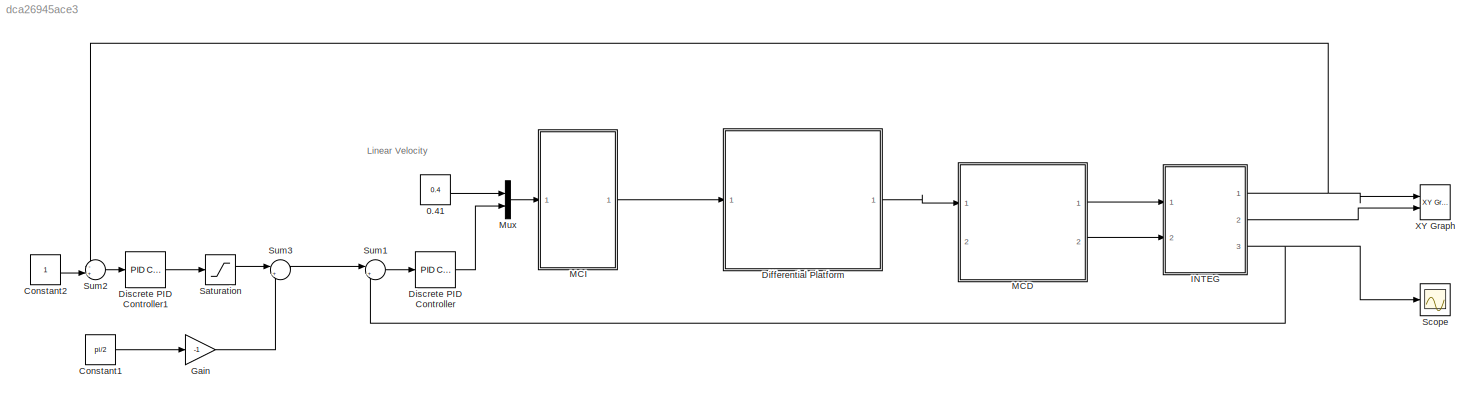
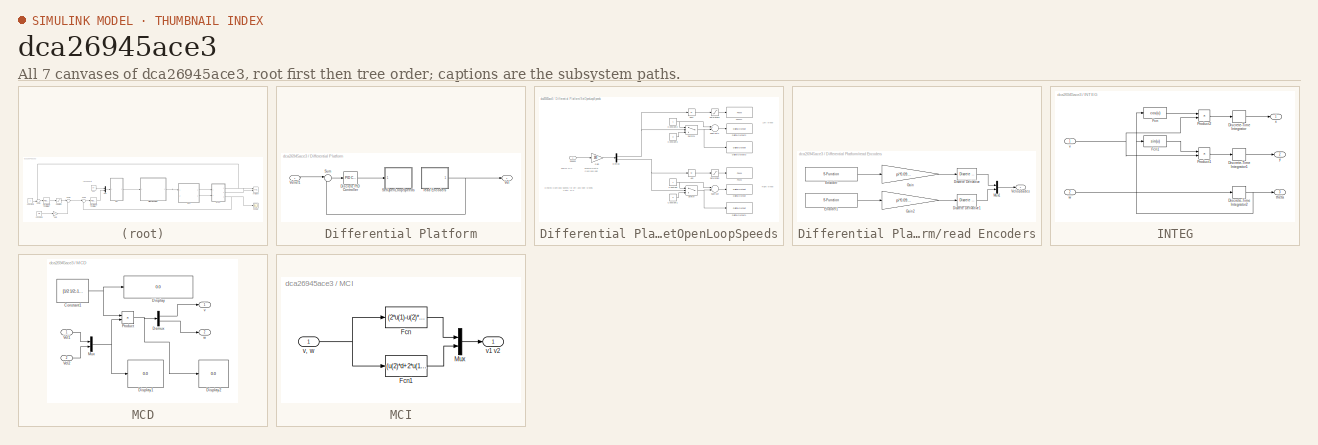
[diagram: thumbnail index - all 7 canvases of the model, root first then tree order]
MODEL slx_dca26945ace3
KIND model
BLOCK [Constant] 0.41
  Value = 0.4
BLOCK [Constant] Constant1
  Value = pi/2
BLOCK [Constant] Constant2
BLOCK [SubSystem] Differential Platform
  FunctionWithSeparateData = off
  MaskHideContents = off
  MinAlgLoopOccurrences = off
  Opaque = off
  Ports = [1, 1]
  PropExecContextOutsideSubsystem = off
  RTWSystemCode = Auto
  RequestExecContextInheritance = off
BLOCK [Reference] Differential Platform/Discrete PID Controller  REF=simulink/Continuous/PID Controller
  AntiWindupMode = none
  Controller = PID
  D = 0
  DOutDataTypeStr = Inherit: Inherit via internal rule
  DOutMax = []
  DOutMin = []
  DParamDataTypeStr = Inherit: Inherit via internal rule
  DParamMax = []
  DParamMin = []
  ExternalReset = none
  FilterContinuousStateAttributes = ''
  FilterMethod = Forward Euler
  FilterOutDataTypeStr = Inherit: Inherit via internal rule
  FilterOutMax = []
  FilterOutMin = []
  FilterRTWStateStorageClass = Auto
  FilterStateMustResolveToSignalObject = off
  Form = Parallel
  I = 2
  IOutDataTypeStr = Inherit: Inherit via internal rule
  IOutMax = []
  IOutMin = []
  IParamDataTypeStr = Inherit: Inherit via internal rule
  IParamMax = []
  IParamMin = []
  IgnoreLimit = off
  InitialConditionForFilter = 0
  InitialConditionForIntegrator = 0
  InitialConditionSource = internal
  IntegratorContinuousStateAttributes = ''
  IntegratorMethod = Forward Euler
  IntegratorOutDataTypeStr = Inherit: Inherit via internal rule
  IntegratorOutMax = []
  IntegratorOutMin = []
  IntegratorRTWStateStorageClass = Auto
  IntegratorStateMustResolveToSignalObject = off
  Kb = 1
  KbOutDataTypeStr = Inherit: Inherit via internal rule
  KbOutMax = []
  KbOutMin = []
  KbParamDataTypeStr = Inherit: Inherit via internal rule
  KbParamMax = []
  KbParamMin = []
  Kt = 1
  KtOutDataTypeStr = Inherit: Inherit via internal rule
  KtOutMax = []
  KtOutMin = []
  KtParamDataTypeStr = Inherit: Inherit via internal rule
  KtParamMax = []
  KtParamMin = []
  LimitOutput = off
  LinearizeAsGain = off
  LockScale = off
  LowerSaturationLimit = -inf
  N = 100
  NOutDataTypeStr = Inherit: Inherit via internal rule
  NOutMax = []
  NOutMin = []
  NParamDataTypeStr = Inherit: Inherit via internal rule
  NParamMax = []
  NParamMin = []
  P = 1
  POutDataTypeStr = Inherit: Inherit via internal rule
  POutMax = []
  POutMin = []
  PParamDataTypeStr = Inherit: Inherit via internal rule
  PParamMax = []
  PParamMin = []
  Ports = [1, 1]
  RndMeth = Floor
  SampleTime = -1
  SaturateOnIntegerOverflow = off
  SaturationOutDataTypeStr = Inherit: Same as input
  SaturationOutMax = []
  SaturationOutMin = []
  SourceBlock = simulink/Continuous/PID Controller
  SourceType = PID 1dof
  SumAccumDataTypeStr = Inherit: Inherit via internal rule
  SumDAccumDataTypeStr = Inherit: Inherit via internal rule
  SumDOutDataTypeStr = Inherit: Inherit via internal rule
  SumDOutMax = []
  SumDOutMin = []
  SumI1AccumDataTypeStr = Inherit: Inherit via internal rule
  SumI1OutDataTypeStr = Inherit: Inherit via internal rule
  SumI1OutMax = []
  SumI1OutMin = []
  SumI2AccumDataTypeStr = Inherit: Inherit via internal rule
  SumI2OutDataTypeStr = Inherit: Inherit via internal rule
  SumI2OutMax = []
  SumI2OutMin = []
  SumI3AccumDataTypeStr = Inherit: Inherit via internal rule
  SumI3OutDataTypeStr = Inherit: Inherit via internal rule
  SumI3OutMax = []
  SumI3OutMin = []
  SumOutDataTypeStr = Inherit: Inherit via internal rule
  SumOutMax = []
  SumOutMin = []
  TimeDomain = Discrete-time
  TrackingMode = off
  UpperSaturationLimit = inf
  ZeroCross = on
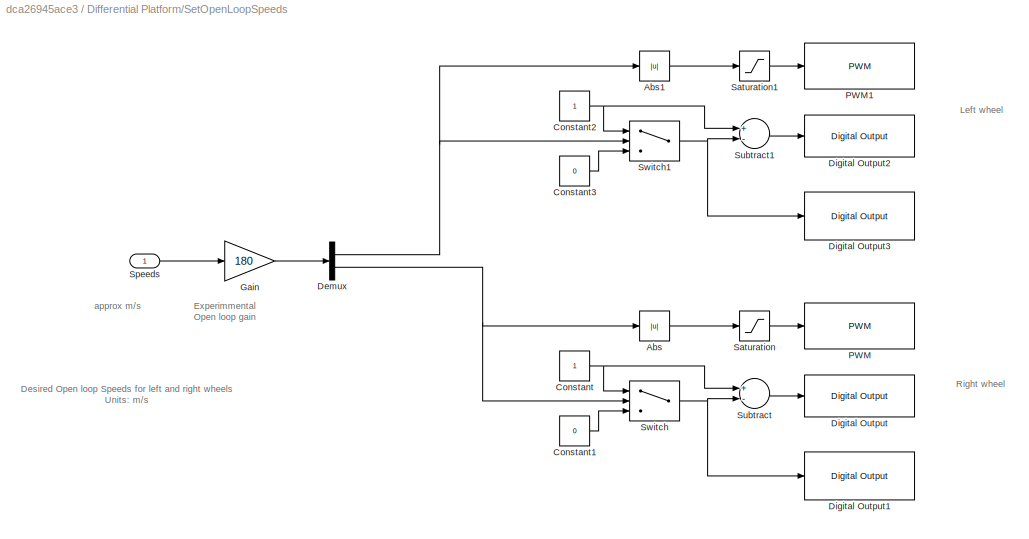
BLOCK [SubSystem] Differential Platform/SetOpenLoopSpeeds
  FunctionWithSeparateData = off
  MaskHideContents = off
  MinAlgLoopOccurrences = off
  Opaque = off
  Ports = [1]
  PropExecContextOutsideSubsystem = off
  RTWSystemCode = Auto
  RequestExecContextInheritance = off
BLOCK [Abs] Differential Platform/SetOpenLoopSpeeds/Abs
  SaturateOnIntegerOverflow = off
BLOCK [Abs] Differential Platform/SetOpenLoopSpeeds/Abs1
  SaturateOnIntegerOverflow = off
BLOCK [Constant] Differential Platform/SetOpenLoopSpeeds/Constant
BLOCK [Constant] Differential Platform/SetOpenLoopSpeeds/Constant1
  Value = 0
BLOCK [Constant] Differential Platform/SetOpenLoopSpeeds/Constant2
BLOCK [Constant] Differential Platform/SetOpenLoopSpeeds/Constant3
  Value = 0
BLOCK [Demux] Differential Platform/SetOpenLoopSpeeds/Demux
  DisplayOption = bar
  Outputs = 2
  Ports = [1, 2]
BLOCK [Reference] Differential Platform/SetOpenLoopSpeeds/Digital Output  REF=arduinolib/Digital Output
  Ports = [1]
  SourceBlock = arduinolib/Digital Output
  SourceType = Arduino Digital Output
  pinNumber = 11
BLOCK [Reference] Differential Platform/SetOpenLoopSpeeds/Digital Output1  REF=arduinolib/Digital Output
  Ports = [1]
  SourceBlock = arduinolib/Digital Output
  SourceType = Arduino Digital Output
  pinNumber = 12
BLOCK [Reference] Differential Platform/SetOpenLoopSpeeds/Digital Output2  REF=arduinolib/Digital Output
  Ports = [1]
  SourceBlock = arduinolib/Digital Output
  SourceType = Arduino Digital Output
  pinNumber = 9
BLOCK [Reference] Differential Platform/SetOpenLoopSpeeds/Digital Output3  REF=arduinolib/Digital Output
  Ports = [1]
  SourceBlock = arduinolib/Digital Output
  SourceType = Arduino Digital Output
  pinNumber = 10
BLOCK [Gain] Differential Platform/SetOpenLoopSpeeds/Gain
  Gain = 180
  OutDataTypeStr = Inherit: Inherit via internal rule
  ParamDataTypeStr = Inherit: Inherit via internal rule
  SaturateOnIntegerOverflow = off
BLOCK [Reference] Differential Platform/SetOpenLoopSpeeds/PWM  REF=arduinolib/PWM
  Ports = [1]
  SourceBlock = arduinolib/PWM
  SourceType = Arduino PWM
  pinNumber = 13
BLOCK [Reference] Differential Platform/SetOpenLoopSpeeds/PWM1  REF=arduinolib/PWM
  Ports = [1]
  SourceBlock = arduinolib/PWM
  SourceType = Arduino PWM
  pinNumber = 8
BLOCK [Saturate] Differential Platform/SetOpenLoopSpeeds/Saturation
  InputPortMap = u0
  LowerLimit = 0
  OutDataTypeStr = uint8
  Ports = [1, 1]
  UpperLimit = 255
BLOCK [Saturate] Differential Platform/SetOpenLoopSpeeds/Saturation1
  InputPortMap = u0
  LowerLimit = 0
  OutDataTypeStr = uint8
  Ports = [1, 1]
  UpperLimit = 255
BLOCK [Inport] Differential Platform/SetOpenLoopSpeeds/Speeds
  IconDisplay = Port number
BLOCK [Sum] Differential Platform/SetOpenLoopSpeeds/Subtract
  InputSameDT = off
  Inputs = +-
  OutDataTypeStr = Inherit: Inherit via internal rule
  Ports = [2, 1]
  SaturateOnIntegerOverflow = off
BLOCK [Sum] Differential Platform/SetOpenLoopSpeeds/Subtract1
  InputSameDT = off
  Inputs = +-
  OutDataTypeStr = Inherit: Inherit via internal rule
  Ports = [2, 1]
  SaturateOnIntegerOverflow = off
BLOCK [Switch] Differential Platform/SetOpenLoopSpeeds/Switch
  Criteria = u2 > Threshold
  InputSameDT = off
  SaturateOnIntegerOverflow = off
BLOCK [Switch] Differential Platform/SetOpenLoopSpeeds/Switch1
  Criteria = u2 > Threshold
  InputSameDT = off
  SaturateOnIntegerOverflow = off
BLOCK [Sum] Differential Platform/Sum
  IconShape = round
  InputSameDT = off
  Inputs = |+-
  OutDataTypeStr = Inherit: Inherit via internal rule
  Ports = [2, 1]
  SaturateOnIntegerOverflow = off
BLOCK [Outport] Differential Platform/Vel
  IconDisplay = Port number
BLOCK [Inport] Differential Platform/Velref1
  IconDisplay = Port number
BLOCK [SubSystem] Differential Platform/read Encoders
  FunctionWithSeparateData = off
  MaskHideContents = off
  MinAlgLoopOccurrences = off
  Opaque = off
  Ports = [0, 1]
  PropExecContextOutsideSubsystem = off
  RTWSystemCode = Auto
  RequestExecContextInheritance = off
BLOCK [Reference] Differential Platform/read Encoders/Discrete Derivative  REF=simulink/Discrete/Discrete Derivative
  DoSatur = off
  ICPrevScaledInput = 0.0
  InputProcessing = Inherited
  LockScale = off
  OutDataType = fixdt(1, 16)
  OutDataTypeStr = Inherit: Inherit via internal rule
  OutMax = []
  OutMin = []
  OutScaling = 2^-10
  OutputDataTypeScalingMode = Inherit via internal rule
  Ports = [1, 1]
  RndMeth = Floor
  SourceBlock = simulink/Discrete/Discrete Derivative
  SourceType = Discrete Derivative
  gainval = 1.0
BLOCK [Reference] Differential Platform/read Encoders/Discrete Derivative1  REF=simulink/Discrete/Discrete Derivative
  DoSatur = off
  ICPrevScaledInput = 0.0
  InputProcessing = Inherited
  LockScale = off
  OutDataType = fixdt(1, 16)
  OutDataTypeStr = Inherit: Inherit via internal rule
  OutMax = []
  OutMin = []
  OutScaling = 2^-10
  OutputDataTypeScalingMode = Inherit via internal rule
  Ports = [1, 1]
  RndMeth = Floor
  SourceBlock = simulink/Discrete/Discrete Derivative
  SourceType = Discrete Derivative
  gainval = 1.0
BLOCK [S-Function] Differential Platform/read Encoders/Encoder
  CopyFcn = set_param(gcbh,'LinkStatus','none')
  EnableBusSupport = off
  FunctionName = sfcn_encoder
  InitFcn = try, set_param(gcb,'FunctionName','sfcn_encoder'), end
  OpenFcn = sfunctionwizard(gcbh)
  Parameters = uint8(0),uint8(3),uint8(2)
  Ports = [0, 1]
  PreSaveFcn = try, set_param(gcb,'FunctionName','sfcn_encoder'), end
  SFunctionModules = sfcn_encoder_wrapper
BLOCK [S-Function] Differential Platform/read Encoders/Encoder1
  CopyFcn = set_param(gcbh,'LinkStatus','none')
  EnableBusSupport = off
  FunctionName = sfcn_encoder
  InitFcn = try, set_param(gcb,'FunctionName','sfcn_encoder'), end
  OpenFcn = sfunctionwizard(gcbh)
  Parameters = uint8(1),uint8(19),uint8(18)
  Ports = [0, 1]
  PreSaveFcn = try, set_param(gcb,'FunctionName','sfcn_encoder'), end
  SFunctionModules = sfcn_encoder_wrapper
BLOCK [Gain] Differential Platform/read Encoders/Gain
  Gain = pi*0.098/360
  OutDataTypeStr = double
  ParamDataTypeStr = Inherit: Inherit via internal rule
  SaturateOnIntegerOverflow = off
BLOCK [Gain] Differential Platform/read Encoders/Gain2
  Gain = pi*0.098/360
  OutDataTypeStr = double
  ParamDataTypeStr = Inherit: Inherit via internal rule
  SaturateOnIntegerOverflow = off
BLOCK [Mux] Differential Platform/read Encoders/Mux1
  DisplayOption = bar
  Inputs = 2
  Ports = [2, 1]
BLOCK [Outport] Differential Platform/read Encoders/Velocidades
  IconDisplay = Port number
BLOCK [Reference] Discrete PID Controller  REF=simulink/Continuous/PID Controller
  AntiWindupMode = none
  Controller = PID
  D = 0
  DOutDataTypeStr = Inherit: Inherit via internal rule
  DOutMax = []
  DOutMin = []
  DParamDataTypeStr = Inherit: Inherit via internal rule
  DParamMax = []
  DParamMin = []
  ExternalReset = none
  FilterContinuousStateAttributes = ''
  FilterMethod = Forward Euler
  FilterOutDataTypeStr = Inherit: Inherit via internal rule
  FilterOutMax = []
  FilterOutMin = []
  FilterRTWStateStorageClass = Auto
  FilterStateMustResolveToSignalObject = off
  Form = Parallel
  I = 0
  IOutDataTypeStr = Inherit: Inherit via internal rule
  IOutMax = []
  IOutMin = []
  IParamDataTypeStr = Inherit: Inherit via internal rule
  IParamMax = []
  IParamMin = []
  IgnoreLimit = off
  InitialConditionForFilter = 0
  InitialConditionForIntegrator = 0
  InitialConditionSource = internal
  IntegratorContinuousStateAttributes = ''
  IntegratorMethod = Forward Euler
  IntegratorOutDataTypeStr = Inherit: Inherit via internal rule
  IntegratorOutMax = []
  IntegratorOutMin = []
  IntegratorRTWStateStorageClass = Auto
  IntegratorStateMustResolveToSignalObject = off
  Kb = 1
  KbOutDataTypeStr = Inherit: Inherit via internal rule
  KbOutMax = []
  KbOutMin = []
  KbParamDataTypeStr = Inherit: Inherit via internal rule
  KbParamMax = []
  KbParamMin = []
  Kt = 1
  KtOutDataTypeStr = Inherit: Inherit via internal rule
  KtOutMax = []
  KtOutMin = []
  KtParamDataTypeStr = Inherit: Inherit via internal rule
  KtParamMax = []
  KtParamMin = []
  LimitOutput = off
  LinearizeAsGain = off
  LockScale = off
  LowerSaturationLimit = -2*pi
  N = 100
  NOutDataTypeStr = Inherit: Inherit via internal rule
  NOutMax = []
  NOutMin = []
  NParamDataTypeStr = Inherit: Inherit via internal rule
  NParamMax = []
  NParamMin = []
  P = 2
  POutDataTypeStr = Inherit: Inherit via internal rule
  POutMax = []
  POutMin = []
  PParamDataTypeStr = Inherit: Inherit via internal rule
  PParamMax = []
  PParamMin = []
  Ports = [1, 1]
  RndMeth = Floor
  SampleTime = -1
  SaturateOnIntegerOverflow = off
  SaturationOutDataTypeStr = Inherit: Same as input
  SaturationOutMax = []
  SaturationOutMin = []
  SourceBlock = simulink/Continuous/PID Controller
  SourceType = PID 1dof
  SumAccumDataTypeStr = Inherit: Inherit via internal rule
  SumDAccumDataTypeStr = Inherit: Inherit via internal rule
  SumDOutDataTypeStr = Inherit: Inherit via internal rule
  SumDOutMax = []
  SumDOutMin = []
  SumI1AccumDataTypeStr = Inherit: Inherit via internal rule
  SumI1OutDataTypeStr = Inherit: Inherit via internal rule
  SumI1OutMax = []
  SumI1OutMin = []
  SumI2AccumDataTypeStr = Inherit: Inherit via internal rule
  SumI2OutDataTypeStr = Inherit: Inherit via internal rule
  SumI2OutMax = []
  SumI2OutMin = []
  SumI3AccumDataTypeStr = Inherit: Inherit via internal rule
  SumI3OutDataTypeStr = Inherit: Inherit via internal rule
  SumI3OutMax = []
  SumI3OutMin = []
  SumOutDataTypeStr = Inherit: Inherit via internal rule
  SumOutMax = []
  SumOutMin = []
  TimeDomain = Discrete-time
  TrackingMode = off
  UpperSaturationLimit = 2*pi
  ZeroCross = on
BLOCK [Reference] Discrete PID Controller1  REF=simulink/Continuous/PID Controller
  AntiWindupMode = none
  Controller = PID
  D = 0
  DOutDataTypeStr = Inherit: Inherit via internal rule
  DOutMax = []
  DOutMin = []
  DParamDataTypeStr = Inherit: Inherit via internal rule
  DParamMax = []
  DParamMin = []
  ExternalReset = none
  FilterContinuousStateAttributes = ''
  FilterMethod = Forward Euler
  FilterOutDataTypeStr = Inherit: Inherit via internal rule
  FilterOutMax = []
  FilterOutMin = []
  FilterRTWStateStorageClass = Auto
  FilterStateMustResolveToSignalObject = off
  Form = Parallel
  I = 0
  IOutDataTypeStr = Inherit: Inherit via internal rule
  IOutMax = []
  IOutMin = []
  IParamDataTypeStr = Inherit: Inherit via internal rule
  IParamMax = []
  IParamMin = []
  IgnoreLimit = off
  InitialConditionForFilter = 0
  InitialConditionForIntegrator = 0
  InitialConditionSource = internal
  IntegratorContinuousStateAttributes = ''
  IntegratorMethod = Forward Euler
  IntegratorOutDataTypeStr = Inherit: Inherit via internal rule
  IntegratorOutMax = []
  IntegratorOutMin = []
  IntegratorRTWStateStorageClass = Auto
  IntegratorStateMustResolveToSignalObject = off
  Kb = 1
  KbOutDataTypeStr = Inherit: Inherit via internal rule
  KbOutMax = []
  KbOutMin = []
  KbParamDataTypeStr = Inherit: Inherit via internal rule
  KbParamMax = []
  KbParamMin = []
  Kt = 1
  KtOutDataTypeStr = Inherit: Inherit via internal rule
  KtOutMax = []
  KtOutMin = []
  KtParamDataTypeStr = Inherit: Inherit via internal rule
  KtParamMax = []
  KtParamMin = []
  LimitOutput = off
  LinearizeAsGain = off
  LockScale = off
  LowerSaturationLimit = -2*pi
  N = 100
  NOutDataTypeStr = Inherit: Inherit via internal rule
  NOutMax = []
  NOutMin = []
  NParamDataTypeStr = Inherit: Inherit via internal rule
  NParamMax = []
  NParamMin = []
  P = 2
  POutDataTypeStr = Inherit: Inherit via internal rule
  POutMax = []
  POutMin = []
  PParamDataTypeStr = Inherit: Inherit via internal rule
  PParamMax = []
  PParamMin = []
  Ports = [1, 1]
  RndMeth = Floor
  SampleTime = -1
  SaturateOnIntegerOverflow = off
  SaturationOutDataTypeStr = Inherit: Same as input
  SaturationOutMax = []
  SaturationOutMin = []
  SourceBlock = simulink/Continuous/PID Controller
  SourceType = PID 1dof
  SumAccumDataTypeStr = Inherit: Inherit via internal rule
  SumDAccumDataTypeStr = Inherit: Inherit via internal rule
  SumDOutDataTypeStr = Inherit: Inherit via internal rule
  SumDOutMax = []
  SumDOutMin = []
  SumI1AccumDataTypeStr = Inherit: Inherit via internal rule
  SumI1OutDataTypeStr = Inherit: Inherit via internal rule
  SumI1OutMax = []
  SumI1OutMin = []
  SumI2AccumDataTypeStr = Inherit: Inherit via internal rule
  SumI2OutDataTypeStr = Inherit: Inherit via internal rule
  SumI2OutMax = []
  SumI2OutMin = []
  SumI3AccumDataTypeStr = Inherit: Inherit via internal rule
  SumI3OutDataTypeStr = Inherit: Inherit via internal rule
  SumI3OutMax = []
  SumI3OutMin = []
  SumOutDataTypeStr = Inherit: Inherit via internal rule
  SumOutMax = []
  SumOutMin = []
  TimeDomain = Discrete-time
  TrackingMode = off
  UpperSaturationLimit = 2*pi
  ZeroCross = on
BLOCK [Gain] Gain
  Gain = -1
  OutDataTypeStr = Inherit: Inherit via internal rule
  ParamDataTypeStr = Inherit: Inherit via internal rule
  SaturateOnIntegerOverflow = off
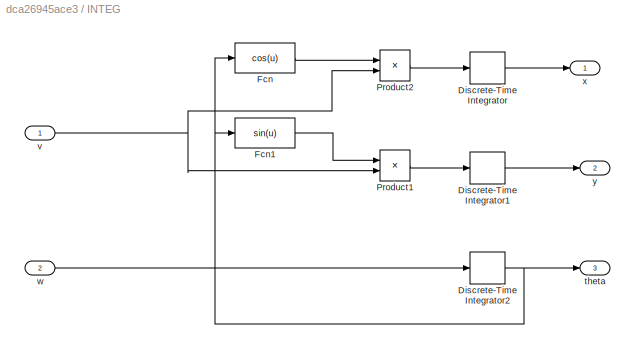
BLOCK [SubSystem] INTEG
  FunctionWithSeparateData = off
  MaskHideContents = off
  MinAlgLoopOccurrences = off
  Opaque = off
  Ports = [2, 3]
  PropExecContextOutsideSubsystem = off
  RTWSystemCode = Auto
  RequestExecContextInheritance = off
BLOCK [DiscreteIntegrator] INTEG/Discrete-Time Integrator
  ICPrevOutput = DiscIntNeverNeededParam
  ICPrevScaledInput = DiscIntNeverNeededParam
  Ports = [1, 1]
  SampleTime = -1
BLOCK [DiscreteIntegrator] INTEG/Discrete-Time Integrator1
  ICPrevOutput = DiscIntNeverNeededParam
  ICPrevScaledInput = DiscIntNeverNeededParam
  Ports = [1, 1]
  SampleTime = -1
BLOCK [DiscreteIntegrator] INTEG/Discrete-Time Integrator2
  ICPrevOutput = DiscIntNeverNeededParam
  ICPrevScaledInput = DiscIntNeverNeededParam
  Ports = [1, 1]
  SampleTime = -1
BLOCK [Fcn] INTEG/Fcn
  Expr = cos(u)
BLOCK [Fcn] INTEG/Fcn1
  Expr = sin(u)
BLOCK [Product] INTEG/Product1
  InputSameDT = off
  OutDataTypeStr = Inherit: Inherit via internal rule
  Ports = [2, 1]
  RndMeth = Floor
  SaturateOnIntegerOverflow = off
BLOCK [Product] INTEG/Product2
  InputSameDT = off
  OutDataTypeStr = Inherit: Inherit via internal rule
  Ports = [2, 1]
  RndMeth = Floor
  SaturateOnIntegerOverflow = off
BLOCK [Outport] INTEG/theta
  IconDisplay = Port number
  Port = 3
BLOCK [Inport] INTEG/v
  IconDisplay = Port number
BLOCK [Inport] INTEG/w
  IconDisplay = Port number
  Port = 2
BLOCK [Outport] INTEG/x
  IconDisplay = Port number
BLOCK [Outport] INTEG/y
  IconDisplay = Port number
  Port = 2
BLOCK [SubSystem] MCD
  FunctionWithSeparateData = off
  MaskHideContents = off
  MinAlgLoopOccurrences = off
  Opaque = off
  Ports = [2, 2]
  PropExecContextOutsideSubsystem = off
  RTWSystemCode = Auto
  RequestExecContextInheritance = off
BLOCK [Constant] MCD/Constant1
  Value = [1/2 1/2;-1/d 1/d]
  VectorParams1D = off
BLOCK [Demux] MCD/Demux
  DisplayOption = bar
  Outputs = 2
  Ports = [1, 2]
BLOCK [Display] MCD/Display
  Decimation = 1
  Ports = [1]
BLOCK [Display] MCD/Display1
  Decimation = 1
  Ports = [1]
BLOCK [Display] MCD/Display2
  Decimation = 1
  Ports = [1]
BLOCK [Mux] MCD/Mux
  DisplayOption = bar
  Inputs = 2
  Ports = [2, 1]
BLOCK [Product] MCD/Product
  InputSameDT = off
  Multiplication = Matrix(*)
  OutDataTypeStr = Inherit: Inherit via internal rule
  Ports = [2, 1]
  RndMeth = Floor
  SaturateOnIntegerOverflow = off
BLOCK [Inport] MCD/Vel1
  IconDisplay = Port number
BLOCK [Inport] MCD/Vel2
  IconDisplay = Port number
  Port = 2
BLOCK [Outport] MCD/v
  IconDisplay = Port number
BLOCK [Outport] MCD/w
  IconDisplay = Port number
  Port = 2
BLOCK [SubSystem] MCI
  FunctionWithSeparateData = off
  MaskHideContents = off
  MinAlgLoopOccurrences = off
  Opaque = off
  Ports = [1, 1]
  PropExecContextOutsideSubsystem = off
  RTWSystemCode = Auto
  RequestExecContextInheritance = off
BLOCK [Fcn] MCI/Fcn
  Expr = (2*u(1)-u(2)*d)/2
BLOCK [Fcn] MCI/Fcn1
  Expr = (u(2)*d+2*u(1))/2
BLOCK [Mux] MCI/Mux
  DisplayOption = bar
  Inputs = 2
  Ports = [2, 1]
BLOCK [Inport] MCI/v, w
  IconDisplay = Port number
BLOCK [Outport] MCI/v1 v2
  IconDisplay = Port number
BLOCK [Mux] Mux
  DisplayOption = bar
  Inputs = 2
  Ports = [2, 1]
BLOCK [Saturate] Saturation
  InputPortMap = u0
  LowerLimit = 0
  Ports = [1, 1]
  UpperLimit = pi
BLOCK [Scope] Scope
  DataFormat = StructureWithTime
  Floating = off
  NumInputPorts = 1
  Ports = [1]
  SampleTime = 0
  ShowLegends = off
  YMax = 36
  YMin = 34.7
  ZoomMode = yonly
BLOCK [Sum] Sum1
  IconShape = round
  InputSameDT = off
  Inputs = |+-
  OutDataTypeStr = Inherit: Inherit via internal rule
  Ports = [2, 1]
  SaturateOnIntegerOverflow = off
BLOCK [Sum] Sum2
  IconShape = round
  InputSameDT = off
  Inputs = -+|
  OutDataTypeStr = Inherit: Inherit via internal rule
  Ports = [2, 1]
  SaturateOnIntegerOverflow = off
BLOCK [Sum] Sum3
  IconShape = round
  InputSameDT = off
  Inputs = |++
  OutDataTypeStr = Inherit: Inherit via internal rule
  Ports = [2, 1]
  SaturateOnIntegerOverflow = off
BLOCK [Reference] XY Graph  REF=simulink/Sinks/XY Graph
  Ports = [2]
  SourceBlock = simulink/Sinks/XY Graph
  SourceType = XY scope.
  st = -1
  xmax = 100
  xmin = -100
  ymax = 100
  ymin = -100
ANNOTATION (root): Linear Velocity
ANNOTATION Differential Platform/SetOpenLoopSpeeds: Desired Open loop Speeds for left and right wheels Units: m/s
ANNOTATION Differential Platform/SetOpenLoopSpeeds: Experimmental Open loop gain
ANNOTATION Differential Platform/SetOpenLoopSpeeds: Left wheel
ANNOTATION Differential Platform/SetOpenLoopSpeeds: Right wheel
ANNOTATION Differential Platform/SetOpenLoopSpeeds: approx m/s
LINE 0.41:1 -> Mux:1
LINE Constant1:1 -> Gain:1
LINE Constant2:1 -> Sum2:2
LINE Differential Platform/Discrete PID Controller:1 -> Differential Platform/SetOpenLoopSpeeds:1
LINE Differential Platform/SetOpenLoopSpeeds/Abs1:1 -> Differential Platform/SetOpenLoopSpeeds/Saturation1:1
LINE Differential Platform/SetOpenLoopSpeeds/Abs:1 -> Differential Platform/SetOpenLoopSpeeds/Saturation:1
LINE Differential Platform/SetOpenLoopSpeeds/Constant1:1 -> Differential Platform/SetOpenLoopSpeeds/Switch:3
NET Differential Platform/SetOpenLoopSpeeds/Constant2:1 -> Differential Platform/SetOpenLoopSpeeds/Subtract1:1, Differential Platform/SetOpenLoopSpeeds/Switch1:1
LINE Differential Platform/SetOpenLoopSpeeds/Constant3:1 -> Differential Platform/SetOpenLoopSpeeds/Switch1:3
NET Differential Platform/SetOpenLoopSpeeds/Constant:1 -> Differential Platform/SetOpenLoopSpeeds/Subtract:1, Differential Platform/SetOpenLoopSpeeds/Switch:1
NET Differential Platform/SetOpenLoopSpeeds/Demux:1 -> Differential Platform/SetOpenLoopSpeeds/Abs1:1, Differential Platform/SetOpenLoopSpeeds/Switch1:2
NET Differential Platform/SetOpenLoopSpeeds/Demux:2 -> Differential Platform/SetOpenLoopSpeeds/Abs:1, Differential Platform/SetOpenLoopSpeeds/Switch:2
LINE Differential Platform/SetOpenLoopSpeeds/Gain:1 -> Differential Platform/SetOpenLoopSpeeds/Demux:1
LINE Differential Platform/SetOpenLoopSpeeds/Saturation1:1 -> Differential Platform/SetOpenLoopSpeeds/PWM1:1
LINE Differential Platform/SetOpenLoopSpeeds/Saturation:1 -> Differential Platform/SetOpenLoopSpeeds/PWM:1
LINE Differential Platform/SetOpenLoopSpeeds/Speeds:1 -> Differential Platform/SetOpenLoopSpeeds/Gain:1
LINE Differential Platform/SetOpenLoopSpeeds/Subtract1:1 -> Differential Platform/SetOpenLoopSpeeds/Digital Output2:1
LINE Differential Platform/SetOpenLoopSpeeds/Subtract:1 -> Differential Platform/SetOpenLoopSpeeds/Digital Output:1
NET Differential Platform/SetOpenLoopSpeeds/Switch1:1 -> Differential Platform/SetOpenLoopSpeeds/Digital Output3:1, Differential Platform/SetOpenLoopSpeeds/Subtract1:2
NET Differential Platform/SetOpenLoopSpeeds/Switch:1 -> Differential Platform/SetOpenLoopSpeeds/Digital Output1:1, Differential Platform/SetOpenLoopSpeeds/Subtract:2
LINE Differential Platform/Sum:1 -> Differential Platform/Discrete PID Controller:1
LINE Differential Platform/Velref1:1 -> Differential Platform/Sum:1
LINE Differential Platform/read Encoders/Discrete Derivative1:1 -> Differential Platform/read Encoders/Mux1:2
LINE Differential Platform/read Encoders/Discrete Derivative:1 -> Differential Platform/read Encoders/Mux1:1
LINE Differential Platform/read Encoders/Encoder1:1 -> Differential Platform/read Encoders/Gain2:1
LINE Differential Platform/read Encoders/Encoder:1 -> Differential Platform/read Encoders/Gain:1
LINE Differential Platform/read Encoders/Gain2:1 -> Differential Platform/read Encoders/Discrete Derivative1:1
LINE Differential Platform/read Encoders/Gain:1 -> Differential Platform/read Encoders/Discrete Derivative:1
LINE Differential Platform/read Encoders/Mux1:1 -> Differential Platform/read Encoders/Velocidades:1
NET Differential Platform/read Encoders:1 -> Differential Platform/Sum:2, Differential Platform/Vel:1
LINE Differential Platform:1 -> MCD:1
LINE Discrete PID Controller1:1 -> Saturation:1
LINE Discrete PID Controller:1 -> Mux:2
LINE Gain:1 -> Sum3:2
LINE INTEG/Discrete-Time Integrator1:1 -> INTEG/y:1
NET INTEG/Discrete-Time Integrator2:1 -> INTEG/Fcn1:1, INTEG/Fcn:1, INTEG/theta:1
LINE INTEG/Discrete-Time Integrator:1 -> INTEG/x:1
LINE INTEG/Fcn1:1 -> INTEG/Product1:1
LINE INTEG/Fcn:1 -> INTEG/Product2:1
LINE INTEG/Product1:1 -> INTEG/Discrete-Time Integrator1:1
LINE INTEG/Product2:1 -> INTEG/Discrete-Time Integrator:1
NET INTEG/v:1 -> INTEG/Product1:2, INTEG/Product2:2
LINE INTEG/w:1 -> INTEG/Discrete-Time Integrator2:1
NET INTEG:1 -> Sum2:1, XY Graph:1
LINE INTEG:2 -> XY Graph:2
NET INTEG:3 -> Scope:1, Sum1:2
NET MCD/Constant1:1 -> MCD/Display:1, MCD/Product:1
LINE MCD/Demux:1 -> MCD/v:1
LINE MCD/Demux:2 -> MCD/w:1
NET MCD/Mux:1 -> MCD/Display1:1, MCD/Product:2
NET MCD/Product:1 -> MCD/Demux:1, MCD/Display2:1
LINE MCD/Vel1:1 -> MCD/Mux:1
LINE MCD/Vel2:1 -> MCD/Mux:2
LINE MCD:1 -> INTEG:1
LINE MCD:2 -> INTEG:2
LINE MCI/Fcn1:1 -> MCI/Mux:2
LINE MCI/Fcn:1 -> MCI/Mux:1
LINE MCI/Mux:1 -> MCI/v1 v2:1
NET MCI/v, w:1 -> MCI/Fcn1:1, MCI/Fcn:1
LINE MCI:1 -> Differential Platform:1
LINE Mux:1 -> MCI:1
LINE Saturation:1 -> Sum3:1
LINE Sum1:1 -> Discrete PID Controller:1
LINE Sum2:1 -> Discrete PID Controller1:1
LINE Sum3:1 -> Sum1:1
note: NET lines group one-source signal fan-out (src -> all destinations, sorted); 1:1 wires keep LINE
